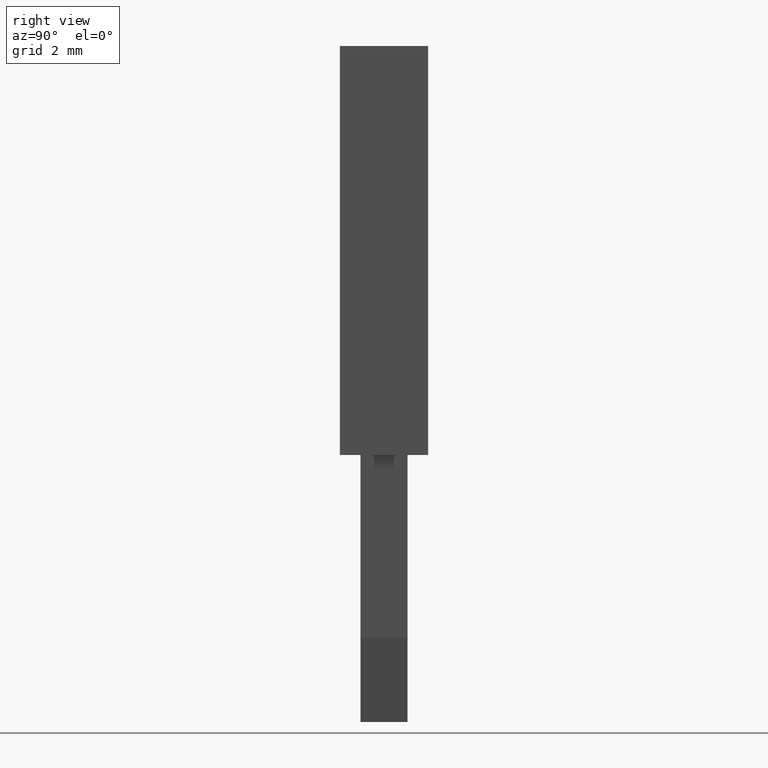
[diagram: clean part render]
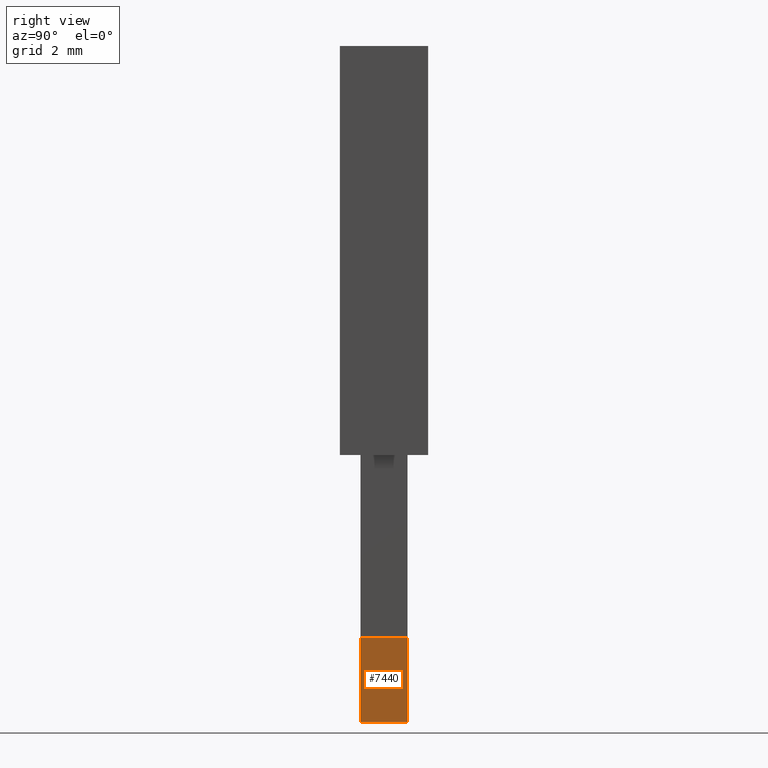
[diagram: same view with one face highlighted and labeled with its STEP entity id]
A machine part, right view. The second image highlights one B-rep face of the part: STEP entity #7440.
In plain terms, the highlighted planar face has unit normal (-0.9872, 0, 0.1594).
Its self-contained STEP definition (entity closure, byte-faithful):
#6280=CARTESIAN_POINT('',(3.30716722167736,-29.2807420624753,
57.7999999990348));
#6290=VERTEX_POINT('',#6280);
#6320=CARTESIAN_POINT('',(3.30716722167522,-12.305124,60.5404020769721))
;
#6330=DIRECTION('',(-1.24539267787327E-13,0.987219178105449,
0.159368423411924));
#6340=VECTOR('',#6330,1.);
#6350=LINE('',#6320,#6340);
#6360=CARTESIAN_POINT('',(3.30716722167772,-32.150000002297,
57.336810948039));
#6370=VERTEX_POINT('',#6360);
#6380=EDGE_CURVE('',#6370,#6290,#6350,.T.);
#6690=CARTESIAN_POINT('',(5.60716722168535,-29.280742062475,
57.7999999990348));
#6700=DIRECTION('',(1.,1.20770879960385E-13,1.14423774522476E-17));
#6710=VECTOR('',#6700,1.);
#6720=LINE('',#6690,#6710);
#6730=CARTESIAN_POINT('',(4.90716722167736,-29.2807420624751,
57.7999999990348));
#6740=VERTEX_POINT('',#6730);
#6750=EDGE_CURVE('',#6290,#6740,#6720,.T.);
#7060=CARTESIAN_POINT('',(4.90716722167772,-32.1500000022968,
57.336810948039));
#7070=VERTEX_POINT('',#7060);
#7100=CARTESIAN_POINT('',(4.90716722167522,-12.305124,60.540402076972));
#7110=DIRECTION('',(-1.24539267787327E-13,0.987219178105449,
0.159368423411924));
#7120=VECTOR('',#7110,1.);
#7130=LINE('',#7100,#7120);
#7140=EDGE_CURVE('',#7070,#6740,#7130,.T.);
#7280=CARTESIAN_POINT('',(3.30716722167737,-29.3585221271379,
57.7874438346561));
#7290=DIRECTION('',(-1.92357685988933E-14,0.159368423411924,
-0.987219178105449));
#7300=DIRECTION('',(-1.2453641694459E-13,0.987219178105449,
0.159368423411924));
#7310=AXIS2_PLACEMENT_3D('',#7280,#7290,#7300);
#7320=PLANE('',#7310);
#7330=ORIENTED_EDGE('',*,*,#6380,.F.);
#7340=ORIENTED_EDGE('',*,*,#6750,.F.);
#7350=ORIENTED_EDGE('',*,*,#7140,.T.);
#7360=CARTESIAN_POINT('',(3.30716722167772,-32.1500000022969,
57.336810948039));
#7370=DIRECTION('',(-1.,-1.26010313294958E-13,-8.57252759403298E-16));
#7380=VECTOR('',#7370,1.);
#7390=LINE('',#7360,#7380);
#7400=EDGE_CURVE('',#7070,#6370,#7390,.T.);
#7410=ORIENTED_EDGE('',*,*,#7400,.F.);
#7420=EDGE_LOOP('',(#7410,#7350,#7340,#7330));
#7430=FACE_OUTER_BOUND('',#7420,.T.);
#7440=ADVANCED_FACE('',(#7430),#7320,.F.);